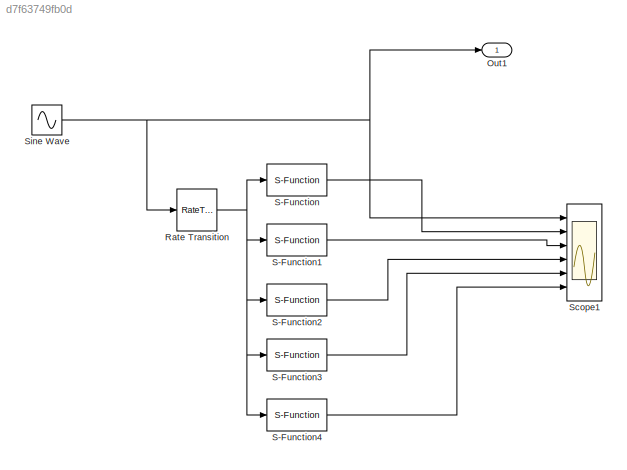
MODEL slx_d7f63749fb0d
KIND model
CONFIG AbsTol = auto
CONFIG FixedStep = auto
CONFIG MaxStep = auto
CONFIG MinStep = auto
CONFIG RelTol = 1e-3
CONFIG SampleTimeConstraint = Unconstrained
CONFIG Solver = ode45
CONFIG SolverMode = Auto
CONFIG SolverName = ode45
CONFIG StartTime = 0.0
CONFIG StopTime = 20
BLOCK [Outport] Out1
  IconDisplay = Port number
BLOCK [RateTransition] Rate Transition
  OutPortSampleTime = 0.1
BLOCK [S-Function] S-Function
  FunctionName = on_line
  Parameters = InputDimension,Phi_1,Preds
  Ports = [1, 1]
BLOCK [S-Function] S-Function1
  FunctionName = on_line
  Parameters = InputDimension,Phi_2,Preds
  Ports = [1, 1]
BLOCK [S-Function] S-Function2
  FunctionName = on_line
  Parameters = InputDimension,Phi_3,Preds
  Ports = [1, 1]
BLOCK [S-Function] S-Function3
  FunctionName = on_line
  Parameters = InputDimension,Phi_4,Preds
  Ports = [1, 1]
BLOCK [S-Function] S-Function4
  FunctionName = on_line
  Parameters = InputDimension,Phi_5,Preds
  Ports = [1, 1]
BLOCK [Scope] Scope1
  DataFormat = StructureWithTime
  Floating = off
  LimitDataPoints = off
  NumInputPorts = 6
  Ports = [6]
  SaveName = ScopeData1
  YMax = 2~1~5~5~5~5
  YMin = -0~0~-5~-5~-5~-5
  ZoomMode = yonly
BLOCK [Sin] Sine Wave
  Ports = [0, 1]
  SampleTime = 0.05
NET Rate Transition:1 -> S-Function1:1, S-Function2:1, S-Function3:1, S-Function4:1, S-Function:1
LINE S-Function1:1 -> Scope1:3
LINE S-Function2:1 -> Scope1:4
LINE S-Function3:1 -> Scope1:5
LINE S-Function4:1 -> Scope1:6
LINE S-Function:1 -> Scope1:2
NET Sine Wave:1 -> Out1:1, Rate Transition:1, Scope1:1
note: NET lines group one-source signal fan-out (src -> all destinations, sorted); 1:1 wires keep LINE
